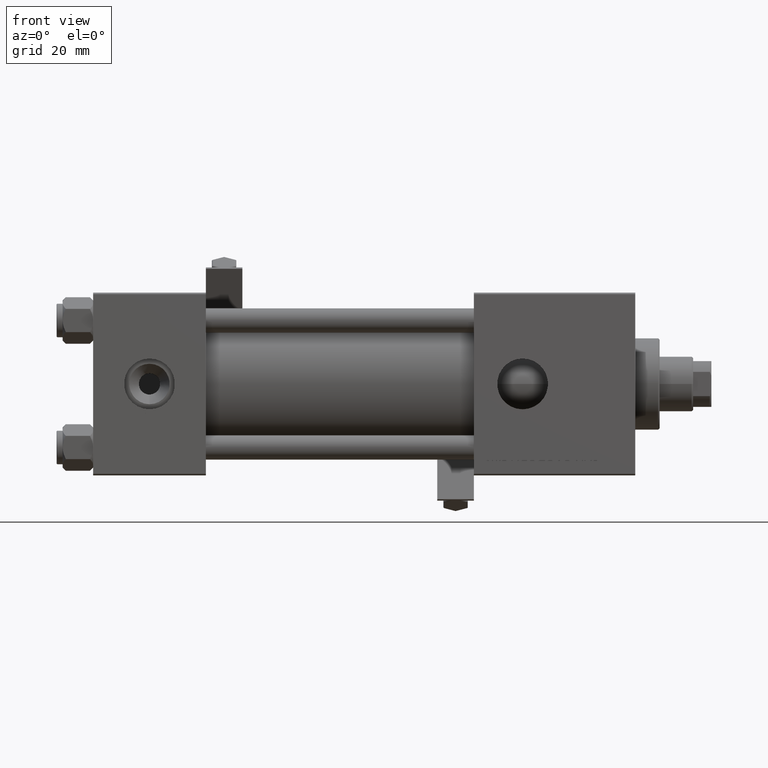
[diagram: clean part render]
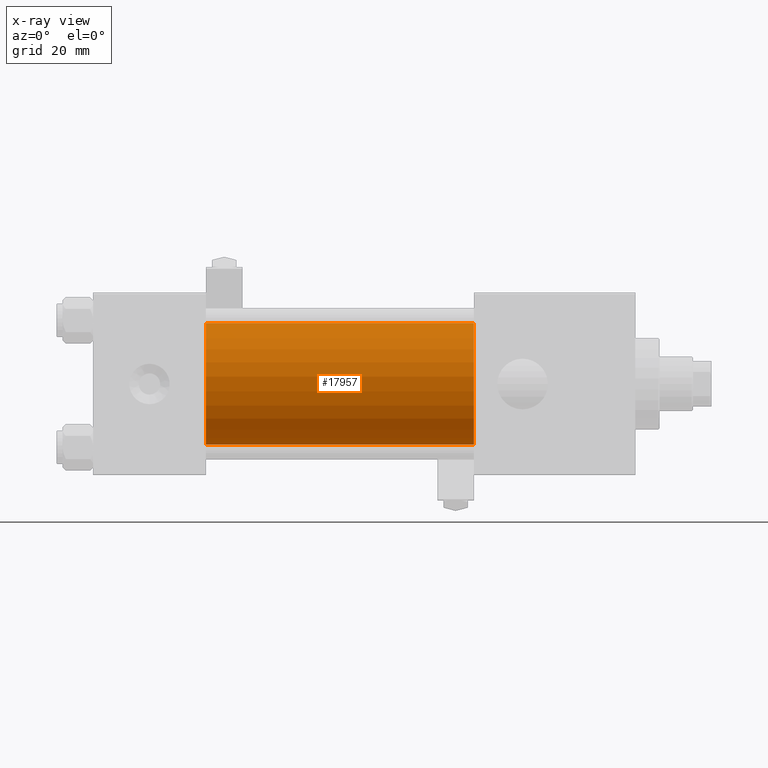
[diagram: x-ray — body ghosted, one internal face saturated and labeled with its STEP entity id]
A machine part, front view, then the same camera in x-ray: the body is ghosted and one INTERNAL B-rep face — a face not visible from any outside direction — is saturated and labeled: STEP entity #17957.
In plain terms, the highlighted cylindrical surface (partial cylindrical patch) has radius 20 mm, axis along (-1, -0, -0).
Its self-contained STEP definition (entity closure, byte-faithful):
#1997 = EDGE_CURVE ( 'NONE', #24011, #53307, #40157, .T. ) ;
#4428 = VECTOR ( 'NONE', #48227, 1000.000000000000000 ) ;
#6875 = DIRECTION ( 'NONE',  ( 1.000000000000000000, 0.000000000000000000, 0.000000000000000000 ) ) ;
#9646 = VERTEX_POINT ( 'NONE', #34414 ) ;
#9917 = EDGE_CURVE ( 'NONE', #9646, #24011, #49453, .T. ) ;
#10639 = DIRECTION ( 'NONE',  ( 0.000000000000000000, 0.000000000000000000, -1.000000000000000000 ) ) ;
#11565 = CARTESIAN_POINT ( 'NONE',  ( 125.0000000000000000, -1.527916156705042519E-16, -20.00000000000000000 ) ) ;
#12015 = DIRECTION ( 'NONE',  ( 0.000000000000000000, 0.000000000000000000, 1.000000000000000000 ) ) ;
#12958 = ORIENTED_EDGE ( 'NONE', *, *, #1997, .T. ) ;
#13766 = CARTESIAN_POINT ( 'NONE',  ( 125.0000000000000000, -1.527916156705042519E-16, -20.00000000000000000 ) ) ;
#14059 = ORIENTED_EDGE ( 'NONE', *, *, #9917, .T. ) ;
#15278 = CARTESIAN_POINT ( 'NONE',  ( 125.0000000000000000, -2.602085213965210642E-15, 0.000000000000000000 ) ) ;
#17957 = ADVANCED_FACE ( 'NONE', ( #52207 ), #35771, .F. ) ;
#18715 = DIRECTION ( 'NONE',  ( 0.000000000000000000, 0.000000000000000000, -1.000000000000000000 ) ) ;
#19839 = CARTESIAN_POINT ( 'NONE',  ( 37.00000000000000000, -2.602085213965210642E-15, 0.000000000000000000 ) ) ;
#21912 = AXIS2_PLACEMENT_3D ( 'NONE', #38414, #39461, #18715 ) ;
#22518 = EDGE_LOOP ( 'NONE', ( #14059, #12958, #42362, #38040 ) ) ;
#23482 = LINE ( 'NONE', #51481, #49020 ) ;
#24011 = VERTEX_POINT ( 'NONE', #13766 ) ;
#25722 = CARTESIAN_POINT ( 'NONE',  ( 37.00000000000000000, -1.527916156705042519E-16, -20.00000000000000000 ) ) ;
#27029 = CARTESIAN_POINT ( 'NONE',  ( 37.00000000000000000, -2.602085213965210642E-15, 20.00000000000000000 ) ) ;
#30069 = CIRCLE ( 'NONE', #52496, 20.00000000000000000 ) ;
#30150 = VERTEX_POINT ( 'NONE', #27029 ) ;
#34414 = CARTESIAN_POINT ( 'NONE',  ( 125.0000000000000000, -2.602085213965210642E-15, 20.00000000000000000 ) ) ;
#34773 = DIRECTION ( 'NONE',  ( -1.000000000000000000, -0.000000000000000000, -0.000000000000000000 ) ) ;
#35771 = CYLINDRICAL_SURFACE ( 'NONE', #38468, 20.00000000000000000 ) ;
#38040 = ORIENTED_EDGE ( 'NONE', *, *, #52708, .F. ) ;
#38414 = CARTESIAN_POINT ( 'NONE',  ( 125.0000000000000000, -2.602085213965210642E-15, 0.000000000000000000 ) ) ;
#38468 = AXIS2_PLACEMENT_3D ( 'NONE', #15278, #43846, #12015 ) ;
#39461 = DIRECTION ( 'NONE',  ( 1.000000000000000000, 0.000000000000000000, 0.000000000000000000 ) ) ;
#40157 = LINE ( 'NONE', #11565, #4428 ) ;
#42362 = ORIENTED_EDGE ( 'NONE', *, *, #53092, .F. ) ;
#43846 = DIRECTION ( 'NONE',  ( -1.000000000000000000, -0.000000000000000000, -0.000000000000000000 ) ) ;
#48227 = DIRECTION ( 'NONE',  ( -1.000000000000000000, -0.000000000000000000, -0.000000000000000000 ) ) ;
#49020 = VECTOR ( 'NONE', #34773, 1000.000000000000000 ) ;
#49453 = CIRCLE ( 'NONE', #21912, 20.00000000000000000 ) ;
#51481 = CARTESIAN_POINT ( 'NONE',  ( 125.0000000000000000, -2.602085213965210642E-15, 20.00000000000000000 ) ) ;
#52207 = FACE_OUTER_BOUND ( 'NONE', #22518, .T. ) ;
#52496 = AXIS2_PLACEMENT_3D ( 'NONE', #19839, #6875, #10639 ) ;
#52708 = EDGE_CURVE ( 'NONE', #9646, #30150, #23482, .T. ) ;
#53092 = EDGE_CURVE ( 'NONE', #30150, #53307, #30069, .T. ) ;
#53307 = VERTEX_POINT ( 'NONE', #25722 ) ;